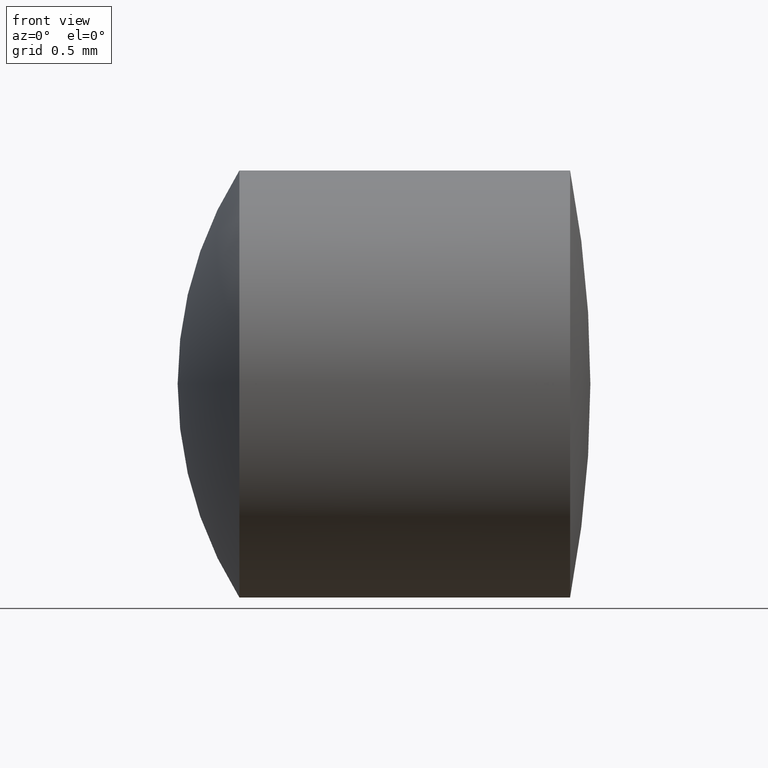
[diagram: clean part render]
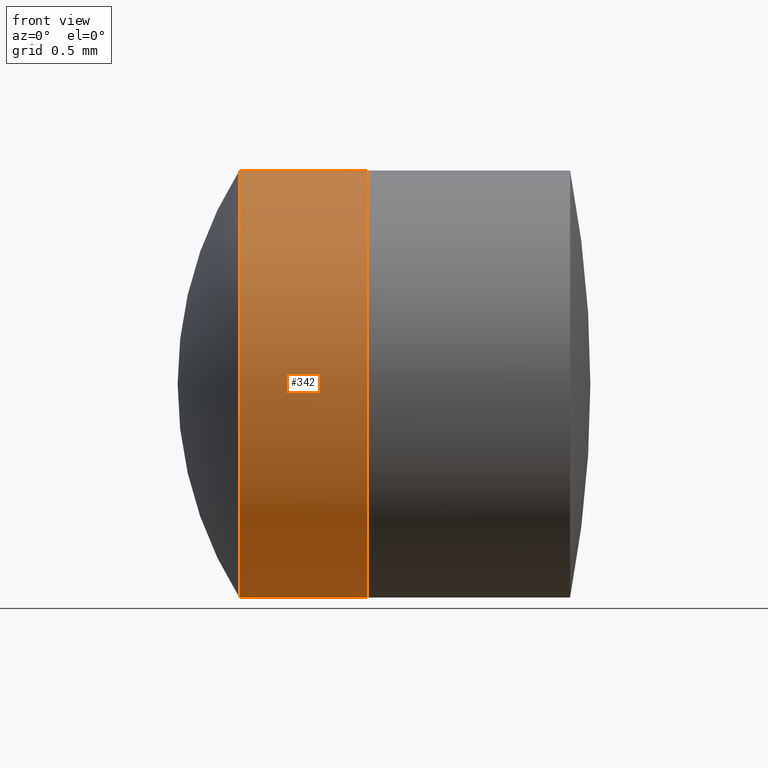
[diagram: same view with one face highlighted and labeled with its STEP entity id]
A machine part, front view. The second image highlights one B-rep face of the part: STEP entity #342.
In plain terms, the highlighted cylindrical surface (partial cylindrical patch) has radius 1.5 mm, axis along (-1, -0, -0).
Its self-contained STEP definition (entity closure, byte-faithful):
#2 = AXIS2_PLACEMENT_3D ( 'NONE', #113, #85, #119 ) ;
#4 = ORIENTED_EDGE ( 'NONE', *, *, #343, .F. ) ;
#5 = CARTESIAN_POINT ( 'NONE',  ( 0.3590600832153031400, 0.0000000000000000000, 0.0000000000000000000 ) ) ;
#20 = CYLINDRICAL_SURFACE ( 'NONE', #2, 1.500000000000000000 ) ;
#43 = VECTOR ( 'NONE', #213, 1000.000000000000000 ) ;
#50 = CIRCLE ( 'NONE', #89, 1.500000000000000000 ) ;
#53 = DIRECTION ( 'NONE',  ( -1.000000000000000000, -0.0000000000000000000, -0.0000000000000000000 ) ) ;
#63 = VECTOR ( 'NONE', #104, 1000.000000000000000 ) ;
#85 = DIRECTION ( 'NONE',  ( -1.000000000000000000, -0.0000000000000000000, -0.0000000000000000000 ) ) ;
#89 = AXIS2_PLACEMENT_3D ( 'NONE', #236, #53, #211 ) ;
#101 = LINE ( 'NONE', #266, #43 ) ;
#104 = DIRECTION ( 'NONE',  ( -1.000000000000000000, -0.0000000000000000000, -0.0000000000000000000 ) ) ;
#113 = CARTESIAN_POINT ( 'NONE',  ( -0.8160621761658039000, 0.0000000000000000000, 0.0000000000000000000 ) ) ;
#119 = DIRECTION ( 'NONE',  ( 0.0000000000000000000, 0.0000000000000000000, 1.000000000000000000 ) ) ;
#123 = LINE ( 'NONE', #289, #63 ) ;
#127 = FACE_OUTER_BOUND ( 'NONE', #327, .T. ) ;
#130 = VERTEX_POINT ( 'NONE', #166 ) ;
#144 = ORIENTED_EDGE ( 'NONE', *, *, #154, .T. ) ;
#154 = EDGE_CURVE ( 'NONE', #256, #130, #101, .T. ) ;
#156 = CIRCLE ( 'NONE', #337, 1.500000000000000000 ) ;
#166 = CARTESIAN_POINT ( 'NONE',  ( 0.3590600832153031400, 0.0000000000000000000, 1.500000000000000200 ) ) ;
#170 = DIRECTION ( 'NONE',  ( -1.000000000000000000, -0.0000000000000000000, -0.0000000000000000000 ) ) ;
#184 = EDGE_CURVE ( 'NONE', #291, #256, #50, .T. ) ;
#191 = VERTEX_POINT ( 'NONE', #265 ) ;
#208 = CARTESIAN_POINT ( 'NONE',  ( 1.256612268473861000, 0.0000000000000000000, 1.500000000000000000 ) ) ;
#211 = DIRECTION ( 'NONE',  ( 0.0000000000000000000, 0.0000000000000000000, 1.000000000000000000 ) ) ;
#213 = DIRECTION ( 'NONE',  ( -1.000000000000000000, -0.0000000000000000000, -0.0000000000000000000 ) ) ;
#218 = EDGE_CURVE ( 'NONE', #291, #191, #123, .T. ) ;
#236 = CARTESIAN_POINT ( 'NONE',  ( 1.256612268473861000, 0.0000000000000000000, 0.0000000000000000000 ) ) ;
#256 = VERTEX_POINT ( 'NONE', #208 ) ;
#265 = CARTESIAN_POINT ( 'NONE',  ( 0.3590600832153031400, 1.836970198721030200E-016, -1.500000000000000200 ) ) ;
#266 = CARTESIAN_POINT ( 'NONE',  ( -0.8160621761658039000, 0.0000000000000000000, 1.500000000000000000 ) ) ;
#275 = CARTESIAN_POINT ( 'NONE',  ( 1.256612268473861000, 1.836970198721029900E-016, -1.500000000000000000 ) ) ;
#289 = CARTESIAN_POINT ( 'NONE',  ( -0.8160621761658039000, 1.836970198721029900E-016, -1.500000000000000000 ) ) ;
#291 = VERTEX_POINT ( 'NONE', #275 ) ;
#308 = ORIENTED_EDGE ( 'NONE', *, *, #184, .T. ) ;
#327 = EDGE_LOOP ( 'NONE', ( #344, #308, #144, #4 ) ) ;
#332 = DIRECTION ( 'NONE',  ( 0.0000000000000000000, 0.0000000000000000000, 1.000000000000000000 ) ) ;
#337 = AXIS2_PLACEMENT_3D ( 'NONE', #5, #170, #332 ) ;
#342 = ADVANCED_FACE ( 'NONE', ( #127 ), #20, .T. ) ;
#343 = EDGE_CURVE ( 'NONE', #191, #130, #156, .T. ) ;
#344 = ORIENTED_EDGE ( 'NONE', *, *, #218, .F. ) ;